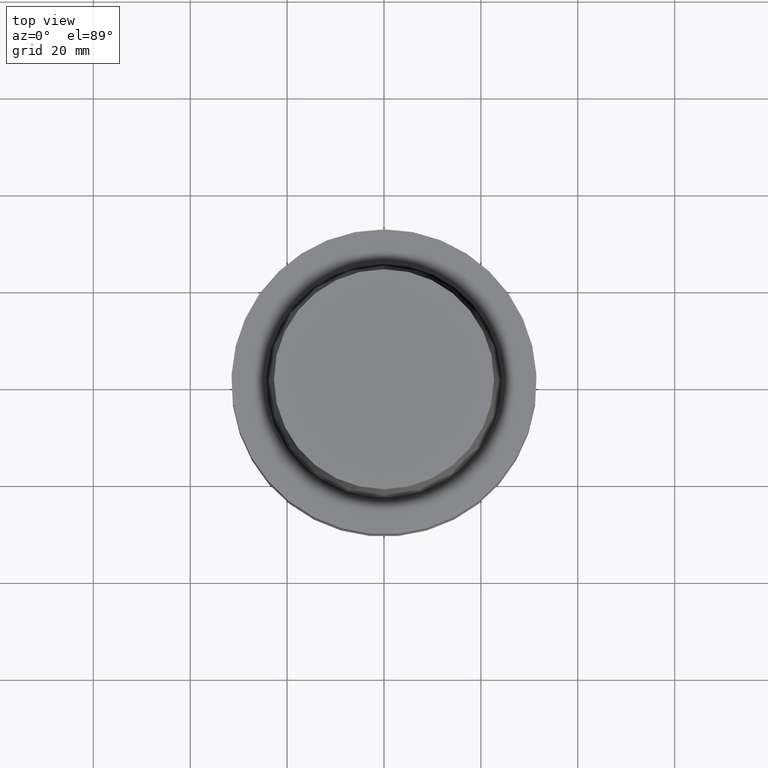
[diagram: clean part render]
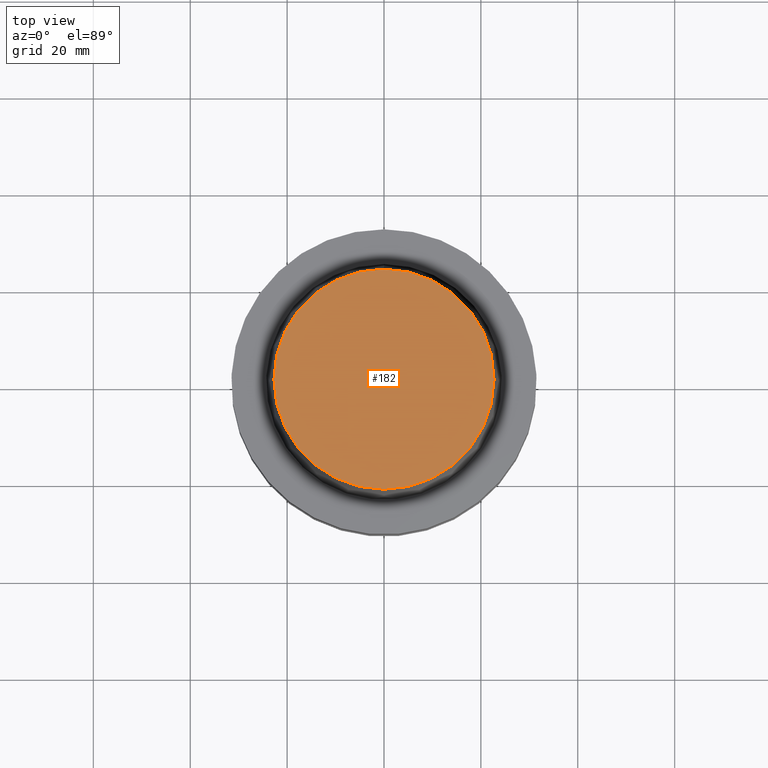
[diagram: same view with one face highlighted and labeled with its STEP entity id]
A machine part, top view. The second image highlights one B-rep face of the part: STEP entity #182.
In plain terms, the highlighted planar face has unit normal (-0, 0, 1).
Its self-contained STEP definition (entity closure, byte-faithful):
#165=EDGE_CURVE('Unnamed[1]',#349,#349,#350,.T.);
#182=ADVANCED_FACE('Unnamed[1]',(#376),#377,.T.);
#349=VERTEX_POINT('',#581);
#350=CIRCLE('',#582,22.715);
#376=FACE_OUTER_BOUND('',#614,.T.);
#377=PLANE('',#615);
#581=CARTESIAN_POINT('',(-1.95943487863576E-015,22.715,32.0));
#582=AXIS2_PLACEMENT_3D('',#792,#793,#794);
#614=EDGE_LOOP('',(#823));
#615=AXIS2_PLACEMENT_3D('',#824,#825,#826);
#792=CARTESIAN_POINT('',(-1.95943487863576E-015,-3.91886975727153E-015,32.0));
#793=DIRECTION('',(-6.12323399573676E-017,-1.22464679914735E-016,1.0));
#794=DIRECTION('',(-1.23259516440783E-032,1.0,1.22464679914735E-016));
#823=ORIENTED_EDGE('',*,*,#165,.T.);
#824=CARTESIAN_POINT('',(-1.95943487863576E-015,11.3575,32.0));
#825=DIRECTION('',(-6.12323399573677E-017,9.72362339746437E-016,1.0));
#826=DIRECTION('',(5.47128686183263E-032,1.0,-9.72362339746437E-016));